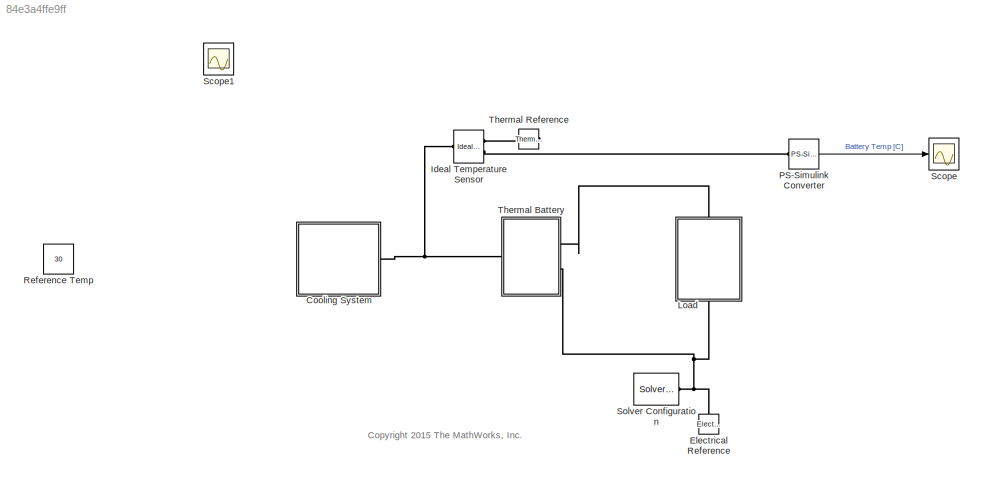
MODEL slx_84e3a4ffe9ff
KIND model
CONFIG AbsTol = 1e-3
CONFIG FixedStep = auto
CONFIG MaxStep = auto
CONFIG MinStep = auto
CONFIG RelTol = 1e-3
CONFIG SampleTimeConstraint = Unconstrained
CONFIG Solver = ode23t
CONFIG SolverMode = Auto
CONFIG SolverName = ode23t
CONFIG StartTime = 0.0
CONFIG StopTime = 1000
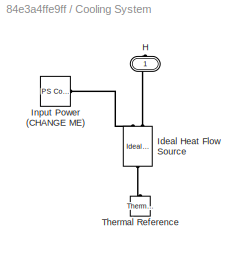
BLOCK [SubSystem] Cooling System
  Ports = [0, 0, 0, 0, 0, 0, 1]
  RequestExecContextInheritance = off
BLOCK [PMIOPort] Cooling System/H
  Port = 1
  Side = Right
BLOCK [Reference] Cooling System/Ideal Heat Flow Source  REF=fl_lib/Thermal/Thermal Sources/Ideal Heat Flow
Source
  ClassName = heat_flow
  ComponentPath = foundation.thermal.sources.heat_flow
  ComponentVariantNames = heat_flow
  ComponentVariants = foundation.thermal.sources.heat_flow
  LogSimulationData = off
  Ports = [0, 0, 0, 0, 0, 1, 2]
  SchemaVersion = 1
  SourceBlock = fl_lib/Thermal/Thermal Sources/Ideal Heat Flow\nSource
  SourceFile = foundation.thermal.sources.heat_flow
  SourceType = Ideal Heat Flow\nSource
BLOCK [Reference] Cooling System/Input Power (CHANGE ME)  REF=fl_lib/Physical Signals/Sources/PS Constant
  ClassName = constant
  ComponentPath = foundation.physical_signal.sources.constant
  ComponentVariantNames = constant
  ComponentVariants = foundation.physical_signal.sources.constant
  LogSimulationData = off
  Ports = [0, 0, 0, 0, 0, 0, 1]
  SchemaVersion = 1
  SourceBlock = fl_lib/Physical Signals/Sources/PS Constant
  SourceFile = foundation.physical_signal.sources.constant
  SourceType = PS Constant
  constant = 0
  constant_unit = 1
BLOCK [Reference] Cooling System/Thermal Reference  REF=fl_lib/Thermal/Thermal Elements/Thermal Reference
  ClassName = reference
  ComponentPath = foundation.thermal.elements.reference
  ComponentVariantNames = reference
  ComponentVariants = foundation.thermal.elements.reference
  LogSimulationData = off
  Ports = [0, 0, 0, 0, 0, 1]
  SchemaVersion = 1
  SourceBlock = fl_lib/Thermal/Thermal Elements/Thermal Reference
  SourceFile = foundation.thermal.elements.reference
  SourceType = Thermal Reference
BLOCK [Reference] Electrical Reference  REF=fl_lib/Electrical/Electrical Elements/Electrical Reference
  ClassName = reference
  ComponentPath = foundation.electrical.elements.reference
  ComponentVariantNames = reference
  ComponentVariants = foundation.electrical.elements.reference
  LogSimulationData = off
  Ports = [0, 0, 0, 0, 0, 1]
  SchemaVersion = 1
  SourceBlock = fl_lib/Electrical/Electrical Elements/Electrical Reference
  SourceFile = foundation.electrical.elements.reference
  SourceType = Electrical Reference
BLOCK [Reference] Ideal Temperature Sensor  REF=fl_lib/Thermal/Thermal Sensors/Ideal Temperature
Sensor
  ClassName = temperature
  ComponentPath = foundation.thermal.sensors.temperature
  ComponentVariantNames = temperature
  ComponentVariants = foundation.thermal.sensors.temperature
  LogSimulationData = off
  Ports = [0, 0, 0, 0, 0, 1, 2]
  SchemaVersion = 1
  SourceBlock = fl_lib/Thermal/Thermal Sensors/Ideal Temperature\nSensor
  SourceFile = foundation.thermal.sensors.temperature
  SourceType = Ideal Temperature\nSensor
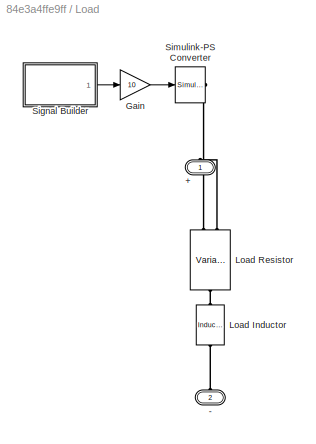
BLOCK [SubSystem] Load
  Ports = [0, 0, 0, 0, 0, 1, 1]
  RequestExecContextInheritance = off
BLOCK [PMIOPort] Load/+
  Port = 1
  Side = Right
BLOCK [PMIOPort] Load/-
  Port = 2
  Side = Left
BLOCK [Gain] Load/Gain
  Gain = 10
  OutDataTypeStr = Inherit: Inherit via internal rule
  ParamDataTypeStr = Inherit: Inherit via internal rule
  SaturateOnIntegerOverflow = off
BLOCK [Reference] Load/Load Inductor  REF=fl_lib/Electrical/Electrical Elements/Inductor
  ClassName = inductor
  ComponentPath = foundation.electrical.elements.inductor
  ComponentVariantNames = inductor
  ComponentVariants = foundation.electrical.elements.inductor
  LogSimulationData = off
  Ports = [0, 0, 0, 0, 0, 1, 1]
  SchemaVersion = 1
  SourceBlock = fl_lib/Electrical/Electrical Elements/Inductor
  SourceFile = foundation.electrical.elements.inductor
  SourceType = Inductor
  g = 1e-9
  g_unit = 1/Ohm
  i = 0
  i_L = 0
  i_L_priority = High
  i_L_specify = off
  i_L_unit = A
  i_priority = High
  i_specify = off
  i_unit = A
  l = 0.1
  l_unit = H
  r = 0
  r_unit = Ohm
  v = 0
  v_priority = High
  v_specify = off
  v_unit = V
BLOCK [Reference] Load/Load Resistor  REF=fl_lib/Electrical/Electrical Elements/Variable Resistor
  ClassName = variable_resistor
  ComponentPath = foundation.electrical.elements.variable_resistor
  ComponentVariantNames = variable_resistor
  ComponentVariants = foundation.electrical.elements.variable_resistor
  LogSimulationData = off
  Ports = [0, 0, 0, 0, 0, 2, 1]
  Rmin = 0
  Rmin_unit = Ohm
  SchemaVersion = 1
  SourceBlock = fl_lib/Electrical/Electrical Elements/Variable Resistor
  SourceFile = foundation.electrical.elements.variable_resistor
  SourceType = Variable Resistor
  i = 0
  i_priority = High
  i_specify = off
  i_unit = A
  v = 0
  v_priority = High
  v_specify = off
  v_unit = V
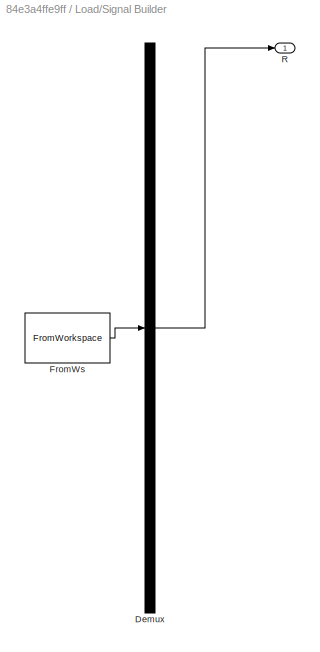
BLOCK [SubSystem] Load/Signal Builder
  ClipboardFcn = sigbuilder_block('clipboard');
  CloseFcn = sigbuilder_block('close');
  ContinueFcn = sigbuilder_block('continue');
  CopyFcn = sigbuilder_block('copy');
  DeleteFcn = sigbuilder_block('delete');
  LoadFcn = sigbuilder_block('load');
  MaskHideContents = on
  ModelCloseFcn = sigbuilder_block('modelClose');
  NameChangeFcn = sigbuilder_block('namechange');
  OpenFcn = sigbuilder_block('open',[437.6 199.2 550.4 400 ]);
  PauseFcn = sigbuilder_block('pause');
  Ports = [0, 1]
  PreSaveFcn = sigbuilder_block('preSave');
  RequestExecContextInheritance = off
  StartFcn = sigbuilder_block('start');
  StopFcn = sigbuilder_block('stop');
  Tag = STV Subsys
BLOCK [Demux] Load/Signal Builder/Demux
  Outputs = 1
  Ports = [1, 1]
  Tag = STV Demux
BLOCK [FromWorkspace] Load/Signal Builder/FromWs
  SampleTime = 0
  Tag = STV FromWs
  VariableName = tuvar
  ZeroCross = on
BLOCK [Outport] Load/Signal Builder/R
  IconDisplay = Port number
  Tag = STV Outport
BLOCK [Reference] Load/Simulink-PS Converter  REF=nesl_utility/Simulink-PS
Converter
  AffineConversion = off
  Frequencies = []
  InputFilterTimeConstant = 0.001
  InputFiltering = off
  LeftPortType = input
  NoiseDistribution = none
  NoiseParameters = []
  PhysicalDomain = network_engine_domain
  Ports = [1, 0, 0, 0, 0, 0, 1]
  PseudoPeriodic = off
  RightPortType = output
  SimscapeFilterOrder = 1
  SourceBlock = nesl_utility/Simulink-PS\nConverter
  SourceType = Simulink-PS\nConverter
  SubClassName = ps_input
  UdotUserProvided = 1
  Unit = Ohm
BLOCK [Reference] PS-Simulink Converter  REF=nesl_utility/PS-Simulink
Converter
  AffineConversion = on
  Frequencies = []
  LeftPortType = input
  PhysicalDomain = network_engine_domain
  Ports = [0, 1, 0, 0, 0, 1]
  PseudoPeriodic = off
  RightPortType = output
  SourceBlock = nesl_utility/PS-Simulink\nConverter
  SourceType = PS-Simulink\nConverter
  SubClassName = ps_output
  Unit = C
BLOCK [Constant] Reference Temp
  Value = 30
BLOCK [Scope] Scope
  Floating = off
  LimitDataPoints = off
  NumInputPorts = 1
  Ports = [1]
  TimeRange = 1000
  YMax = 180
  YMin = 20
BLOCK [Scope] Scope1
  DataFormat = StructureWithTime
  Floating = off
  IOType = viewer
  NumInputPorts = 1
  Ports = []
  SampleTime = 0
  SaveName = ScopeData1
BLOCK [Reference] Solver Configuration  REF=nesl_utility/Solver
Configuration
  AbsTol = 1e-06
  Accelerate = off
  AutomaticFiltering = on
  DelaysMemoryBudget = 1024
  DoDC = off
  DoFixedCost = off
  EnableSwitchedLinearOptims = on
  FilteringTimeConstant = 0.001
  FrequencyDomain = off
  Harmonics = []
  LeftPortType = input
  LinearAlgebra = Sparse
  LocalSolverChoice = NE_BACKWARD_EULER_ADVANCER
  LocalSolverSampleTime = 0.001
  MaxModeIter = 2
  MaxNonlinIter = 3
  MinStep = 1e-09
  NumHomotopyIterations = 100
  PhysicalDomain = network_engine_domain
  Ports = [0, 0, 0, 0, 0, 0, 1]
  Profile = off
  RelTol = 0.001
  ResidualTolerance = 1e-09
  RevertToSquareIcSolve = off
  RightPortType = generic
  SimulateNoise = off
  SourceBlock = nesl_utility/Solver\nConfiguration
  SourceType = Solver\nConfiguration
  SubClassName = solver
  ToWorkspace = off
  Tones = []
  UseCCode = off
  UseLocalSampling = off
  UseLocalSolver = off
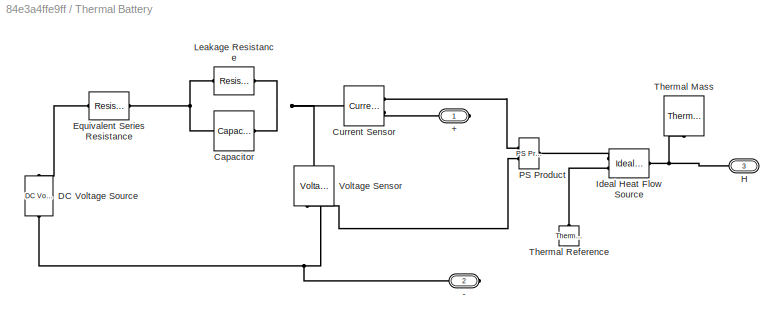
BLOCK [SubSystem] Thermal Battery
  Ports = [0, 0, 0, 0, 0, 1, 2]
  RequestExecContextInheritance = off
BLOCK [PMIOPort] Thermal Battery/+
  Port = 1
  Side = Right
BLOCK [PMIOPort] Thermal Battery/-
  Port = 2
  Side = Right
BLOCK [Reference] Thermal Battery/Capacitor  REF=fl_lib/Electrical/Electrical Elements/Capacitor
  ClassName = capacitor
  ComponentPath = foundation.electrical.elements.capacitor
  ComponentVariantNames = capacitor
  ComponentVariants = foundation.electrical.elements.capacitor
  LogSimulationData = off
  Ports = [0, 0, 0, 0, 0, 1, 1]
  SchemaVersion = 1
  SourceBlock = fl_lib/Electrical/Electrical Elements/Capacitor
  SourceFile = foundation.electrical.elements.capacitor
  SourceType = Capacitor
  c = 5000
  c_unit = F
  g = 0
  g_unit = 1/Ohm
  i = 0
  i_priority = High
  i_specify = off
  i_unit = A
  r = 1e-6
  r_unit = Ohm
  v = 0
  v_priority = High
  v_specify = off
  v_unit = V
  vc = 0
  vc_priority = High
  vc_specify = on
  vc_unit = V
BLOCK [Reference] Thermal Battery/Current Sensor  REF=fl_lib/Electrical/Electrical Sensors/Current Sensor
  ClassName = current
  ComponentPath = foundation.electrical.sensors.current
  ComponentVariantNames = current
  ComponentVariants = foundation.electrical.sensors.current
  LogSimulationData = off
  Ports = [0, 0, 0, 0, 0, 1, 2]
  SchemaVersion = 1
  SourceBlock = fl_lib/Electrical/Electrical Sensors/Current Sensor
  SourceFile = foundation.electrical.sensors.current
  SourceType = Current Sensor
BLOCK [Reference] Thermal Battery/DC Voltage Source  REF=fl_lib/Electrical/Electrical Sources/DC Voltage Source
  ClassName = dc_voltage
  ComponentPath = foundation.electrical.sources.dc_voltage
  ComponentVariantNames = dc_voltage
  ComponentVariants = foundation.electrical.sources.dc_voltage
  LogSimulationData = off
  Ports = [0, 0, 0, 0, 0, 1, 1]
  SchemaVersion = 1
  SourceBlock = fl_lib/Electrical/Electrical Sources/DC Voltage Source
  SourceFile = foundation.electrical.sources.dc_voltage
  SourceType = DC Voltage Source
  v0 = 100
  v0_unit = V
BLOCK [Reference] Thermal Battery/Equivalent Series Resistance  REF=fl_lib/Electrical/Electrical Elements/Resistor
  ClassName = resistor
  ComponentPath = foundation.electrical.elements.resistor
  ComponentVariantNames = resistor
  ComponentVariants = foundation.electrical.elements.resistor
  LogSimulationData = off
  Ports = [0, 0, 0, 0, 0, 1, 1]
  R = 0.01
  R_unit = Ohm
  SchemaVersion = 1
  SourceBlock = fl_lib/Electrical/Electrical Elements/Resistor
  SourceFile = foundation.electrical.elements.resistor
  SourceType = Resistor
  i = 0
  i_priority = High
  i_specify = off
  i_unit = A
  v = 0
  v_priority = High
  v_specify = off
  v_unit = V
BLOCK [PMIOPort] Thermal Battery/H
  Port = 3
  Side = Left
BLOCK [Reference] Thermal Battery/Ideal Heat Flow Source  REF=fl_lib/Thermal/Thermal Sources/Ideal Heat Flow
Source
  ClassName = heat_flow
  ComponentPath = foundation.thermal.sources.heat_flow
  ComponentVariantNames = heat_flow
  ComponentVariants = foundation.thermal.sources.heat_flow
  LogSimulationData = off
  Ports = [0, 0, 0, 0, 0, 1, 2]
  SchemaVersion = 1
  SourceBlock = fl_lib/Thermal/Thermal Sources/Ideal Heat Flow\nSource
  SourceFile = foundation.thermal.sources.heat_flow
  SourceType = Ideal Heat Flow\nSource
BLOCK [Reference] Thermal Battery/Leakage Resistance  REF=fl_lib/Electrical/Electrical Elements/Resistor
  ClassName = resistor
  ComponentPath = foundation.electrical.elements.resistor
  ComponentVariantNames = resistor
  ComponentVariants = foundation.electrical.elements.resistor
  LogSimulationData = off
  Ports = [0, 0, 0, 0, 0, 1, 1]
  R = 0.005
  R_unit = Ohm
  SchemaVersion = 1
  SourceBlock = fl_lib/Electrical/Electrical Elements/Resistor
  SourceFile = foundation.electrical.elements.resistor
  SourceType = Resistor
  i = 0
  i_priority = High
  i_specify = off
  i_unit = A
  v = 0
  v_priority = High
  v_specify = off
  v_unit = V
BLOCK [Reference] Thermal Battery/PS Product  REF=fl_lib/Physical Signals/Functions/PS Product
  ClassName = product
  ComponentPath = foundation.physical_signal.functions.product
  ComponentVariantNames = product
  ComponentVariants = foundation.physical_signal.functions.product
  LogSimulationData = off
  Ports = [0, 0, 0, 0, 0, 2, 1]
  SchemaVersion = 1
  SourceBlock = fl_lib/Physical Signals/Functions/PS Product
  SourceFile = foundation.physical_signal.functions.product
  SourceType = PS Product
BLOCK [Reference] Thermal Battery/Thermal Mass  REF=fl_lib/Thermal/Thermal Elements/Thermal Mass
  ClassName = mass
  ComponentPath = foundation.thermal.elements.mass
  ComponentVariantNames = mass
  ComponentVariants = foundation.thermal.elements.mass
  LogSimulationData = off
  Ports = [0, 0, 0, 0, 0, 1]
  Q = 0
  Q_priority = High
  Q_specify = off
  Q_unit = J/s
  SchemaVersion = 1
  SourceBlock = fl_lib/Thermal/Thermal Elements/Thermal Mass
  SourceFile = foundation.thermal.elements.mass
  SourceType = Thermal Mass
  T = 30
  T_priority = High
  T_specify = on
  T_unit = C
  mass = 1
  mass_unit = kg
  sp_heat = 795
  sp_heat_unit = J/kg/K
BLOCK [Reference] Thermal Battery/Thermal Reference  REF=fl_lib/Thermal/Thermal Elements/Thermal Reference
  ClassName = reference
  ComponentPath = foundation.thermal.elements.reference
  ComponentVariantNames = reference
  ComponentVariants = foundation.thermal.elements.reference
  LogSimulationData = off
  Ports = [0, 0, 0, 0, 0, 1]
  SchemaVersion = 1
  SourceBlock = fl_lib/Thermal/Thermal Elements/Thermal Reference
  SourceFile = foundation.thermal.elements.reference
  SourceType = Thermal Reference
BLOCK [Reference] Thermal Battery/Voltage Sensor  REF=fl_lib/Electrical/Electrical Sensors/Voltage Sensor
  ClassName = voltage
  ComponentPath = foundation.electrical.sensors.voltage
  ComponentVariantNames = voltage
  ComponentVariants = foundation.electrical.sensors.voltage
  LogSimulationData = off
  Ports = [0, 0, 0, 0, 0, 1, 2]
  SchemaVersion = 1
  SourceBlock = fl_lib/Electrical/Electrical Sensors/Voltage Sensor
  SourceFile = foundation.electrical.sensors.voltage
  SourceType = Voltage Sensor
BLOCK [Reference] Thermal Reference  REF=fl_lib/Thermal/Thermal Elements/Thermal Reference
  ClassName = reference
  ComponentPath = foundation.thermal.elements.reference
  ComponentVariantNames = reference
  ComponentVariants = foundation.thermal.elements.reference
  LogSimulationData = off
  Ports = [0, 0, 0, 0, 0, 1]
  SchemaVersion = 1
  SourceBlock = fl_lib/Thermal/Thermal Elements/Thermal Reference
  SourceFile = foundation.thermal.elements.reference
  SourceType = Thermal Reference
ANNOTATION (root): <copyright redacted>
LINE Load/Gain:1 -> Load/Simulink-PS Converter:1
LINE Load/Signal Builder:1 -> Load/Gain:1
LINE PS-Simulink Converter:1 -> Scope:1
PLINE Cooling System/H:RConn1 -- Cooling System/Ideal Heat Flow Source:RConn2
PLINE Cooling System/Ideal Heat Flow Source:LConn1 -- Cooling System/Thermal Reference:LConn1
PLINE Cooling System/Ideal Heat Flow Source:RConn1 -- Cooling System/Input Power (CHANGE ME):RConn1
PNET net1: Cooling System:RConn1 -- Ideal Temperature Sensor:LConn1 -- Thermal Battery:LConn1
PNET net2: Electrical Reference:LConn1 -- Load:LConn1 -- Solver Configuration:RConn1 -- Thermal Battery:RConn2
PLINE Ideal Temperature Sensor:RConn1 -- Thermal Reference:LConn1
PLINE Ideal Temperature Sensor:RConn2 -- PS-Simulink Converter:LConn1
PLINE Load/+:RConn1 -- Load/Load Resistor:LConn2
PLINE Load/-:RConn1 -- Load/Load Inductor:RConn1
PLINE Load/Load Inductor:LConn1 -- Load/Load Resistor:RConn1
PLINE Load/Load Resistor:LConn1 -- Load/Simulink-PS Converter:RConn1
PLINE Load:RConn1 -- Thermal Battery:RConn1
PLINE Thermal Battery/+:RConn1 -- Thermal Battery/Current Sensor:RConn2
PNET net3: Thermal Battery/-:RConn1 -- Thermal Battery/DC Voltage Source:RConn1 -- Thermal Battery/Voltage Sensor:RConn2
PNET net4: Thermal Battery/Capacitor:LConn1 -- Thermal Battery/Equivalent Series Resistance:RConn1 -- Thermal Battery/Leakage Resistance:LConn1
PNET net5: Thermal Battery/Capacitor:RConn1 -- Thermal Battery/Current Sensor:LConn1 -- Thermal Battery/Leakage Resistance:RConn1 -- Thermal Battery/Voltage Sensor:LConn1
PLINE Thermal Battery/Current Sensor:RConn1 -- Thermal Battery/PS Product:LConn1
PLINE Thermal Battery/DC Voltage Source:LConn1 -- Thermal Battery/Equivalent Series Resistance:LConn1
PNET net6: Thermal Battery/H:RConn1 -- Thermal Battery/Ideal Heat Flow Source:LConn1 -- Thermal Battery/Thermal Mass:LConn1
PLINE Thermal Battery/Ideal Heat Flow Source:RConn1 -- Thermal Battery/PS Product:RConn1
PLINE Thermal Battery/Ideal Heat Flow Source:RConn2 -- Thermal Battery/Thermal Reference:LConn1
PLINE Thermal Battery/PS Product:LConn2 -- Thermal Battery/Voltage Sensor:RConn1
note: PNET lines group multi-terminal physical nets as a canonical sorted terminal list (undirected conserving connections); 2-terminal nets keep the pairwise PLINE form
